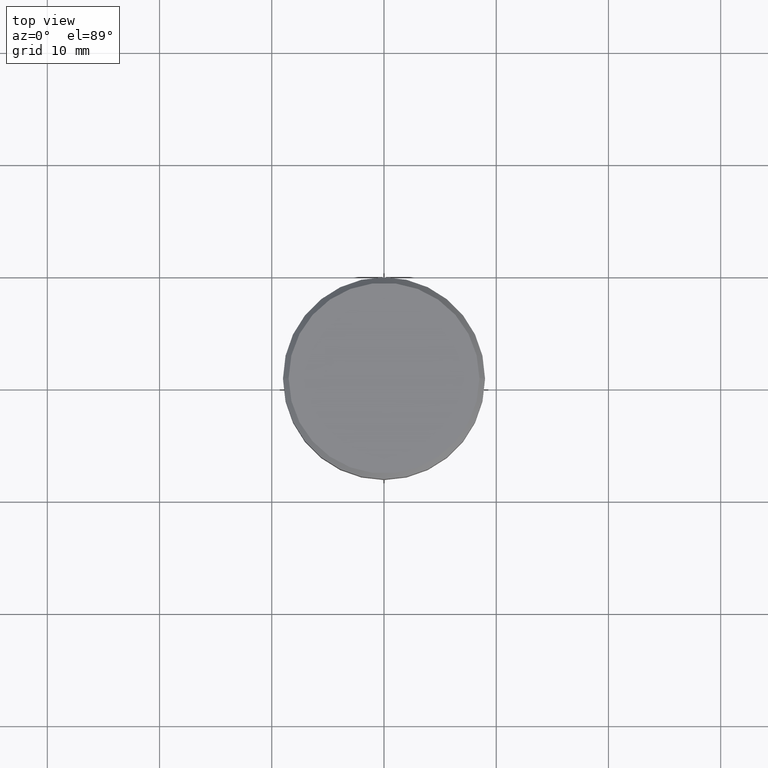
[diagram: clean part render]
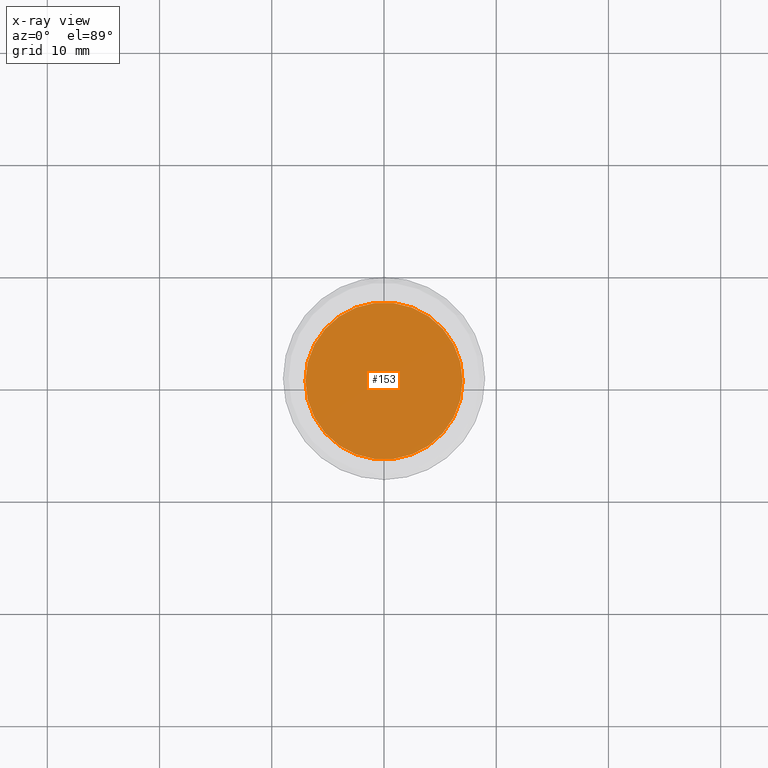
[diagram: x-ray — body ghosted, one internal face saturated and labeled with its STEP entity id]
A machine part, top view, then the same camera in x-ray: the body is ghosted and one INTERNAL B-rep face — a face not visible from any outside direction — is saturated and labeled: STEP entity #153.
In plain terms, the highlighted planar face has unit normal (0, 0, -1).
Its self-contained STEP definition (entity closure, byte-faithful):
#49 = PLANE ( 'NONE',  #276 ) ;
#59 = CARTESIAN_POINT ( 'NONE',  ( -7.000000000000000000, 8.572527594031472204E-16, -15.00000000000000000 ) ) ;
#153 = ADVANCED_FACE ( 'NONE', ( #803 ), #49, .F. ) ;
#196 = DIRECTION ( 'NONE',  ( 1.000000000000000000, 0.000000000000000000, 0.000000000000000000 ) ) ;
#235 = ORIENTED_EDGE ( 'NONE', *, *, #365, .T. ) ;
#262 = EDGE_CURVE ( 'NONE', #775, #796, #787, .T. ) ;
#276 = AXIS2_PLACEMENT_3D ( 'NONE', #619, #1038, #394 ) ;
#304 = EDGE_LOOP ( 'NONE', ( #235, #671 ) ) ;
#365 = EDGE_CURVE ( 'NONE', #796, #775, #523, .T. ) ;
#394 = DIRECTION ( 'NONE',  ( -1.000000000000000000, 0.000000000000000000, -0.000000000000000000 ) ) ;
#454 = CARTESIAN_POINT ( 'NONE',  ( 7.000000000000000000, 0.000000000000000000, -15.00000000000000000 ) ) ;
#511 = DIRECTION ( 'NONE',  ( -0.000000000000000000, -0.000000000000000000, 1.000000000000000000 ) ) ;
#523 = CIRCLE ( 'NONE', #666, 7.000000000000000000 ) ;
#619 = CARTESIAN_POINT ( 'NONE',  ( 0.000000000000000000, -4.336808689942017736E-15, -15.00000000000000000 ) ) ;
#642 = DIRECTION ( 'NONE',  ( -0.000000000000000000, -0.000000000000000000, 1.000000000000000000 ) ) ;
#657 = CARTESIAN_POINT ( 'NONE',  ( 0.000000000000000000, 0.000000000000000000, -15.00000000000000000 ) ) ;
#666 = AXIS2_PLACEMENT_3D ( 'NONE', #677, #642, #835 ) ;
#671 = ORIENTED_EDGE ( 'NONE', *, *, #262, .T. ) ;
#677 = CARTESIAN_POINT ( 'NONE',  ( 0.000000000000000000, 0.000000000000000000, -15.00000000000000000 ) ) ;
#724 = AXIS2_PLACEMENT_3D ( 'NONE', #657, #511, #196 ) ;
#775 = VERTEX_POINT ( 'NONE', #59 ) ;
#787 = CIRCLE ( 'NONE', #724, 7.000000000000000000 ) ;
#796 = VERTEX_POINT ( 'NONE', #454 ) ;
#803 = FACE_OUTER_BOUND ( 'NONE', #304, .T. ) ;
#835 = DIRECTION ( 'NONE',  ( 1.000000000000000000, 0.000000000000000000, 0.000000000000000000 ) ) ;
#1038 = DIRECTION ( 'NONE',  ( 0.000000000000000000, 0.000000000000000000, -1.000000000000000000 ) ) ;